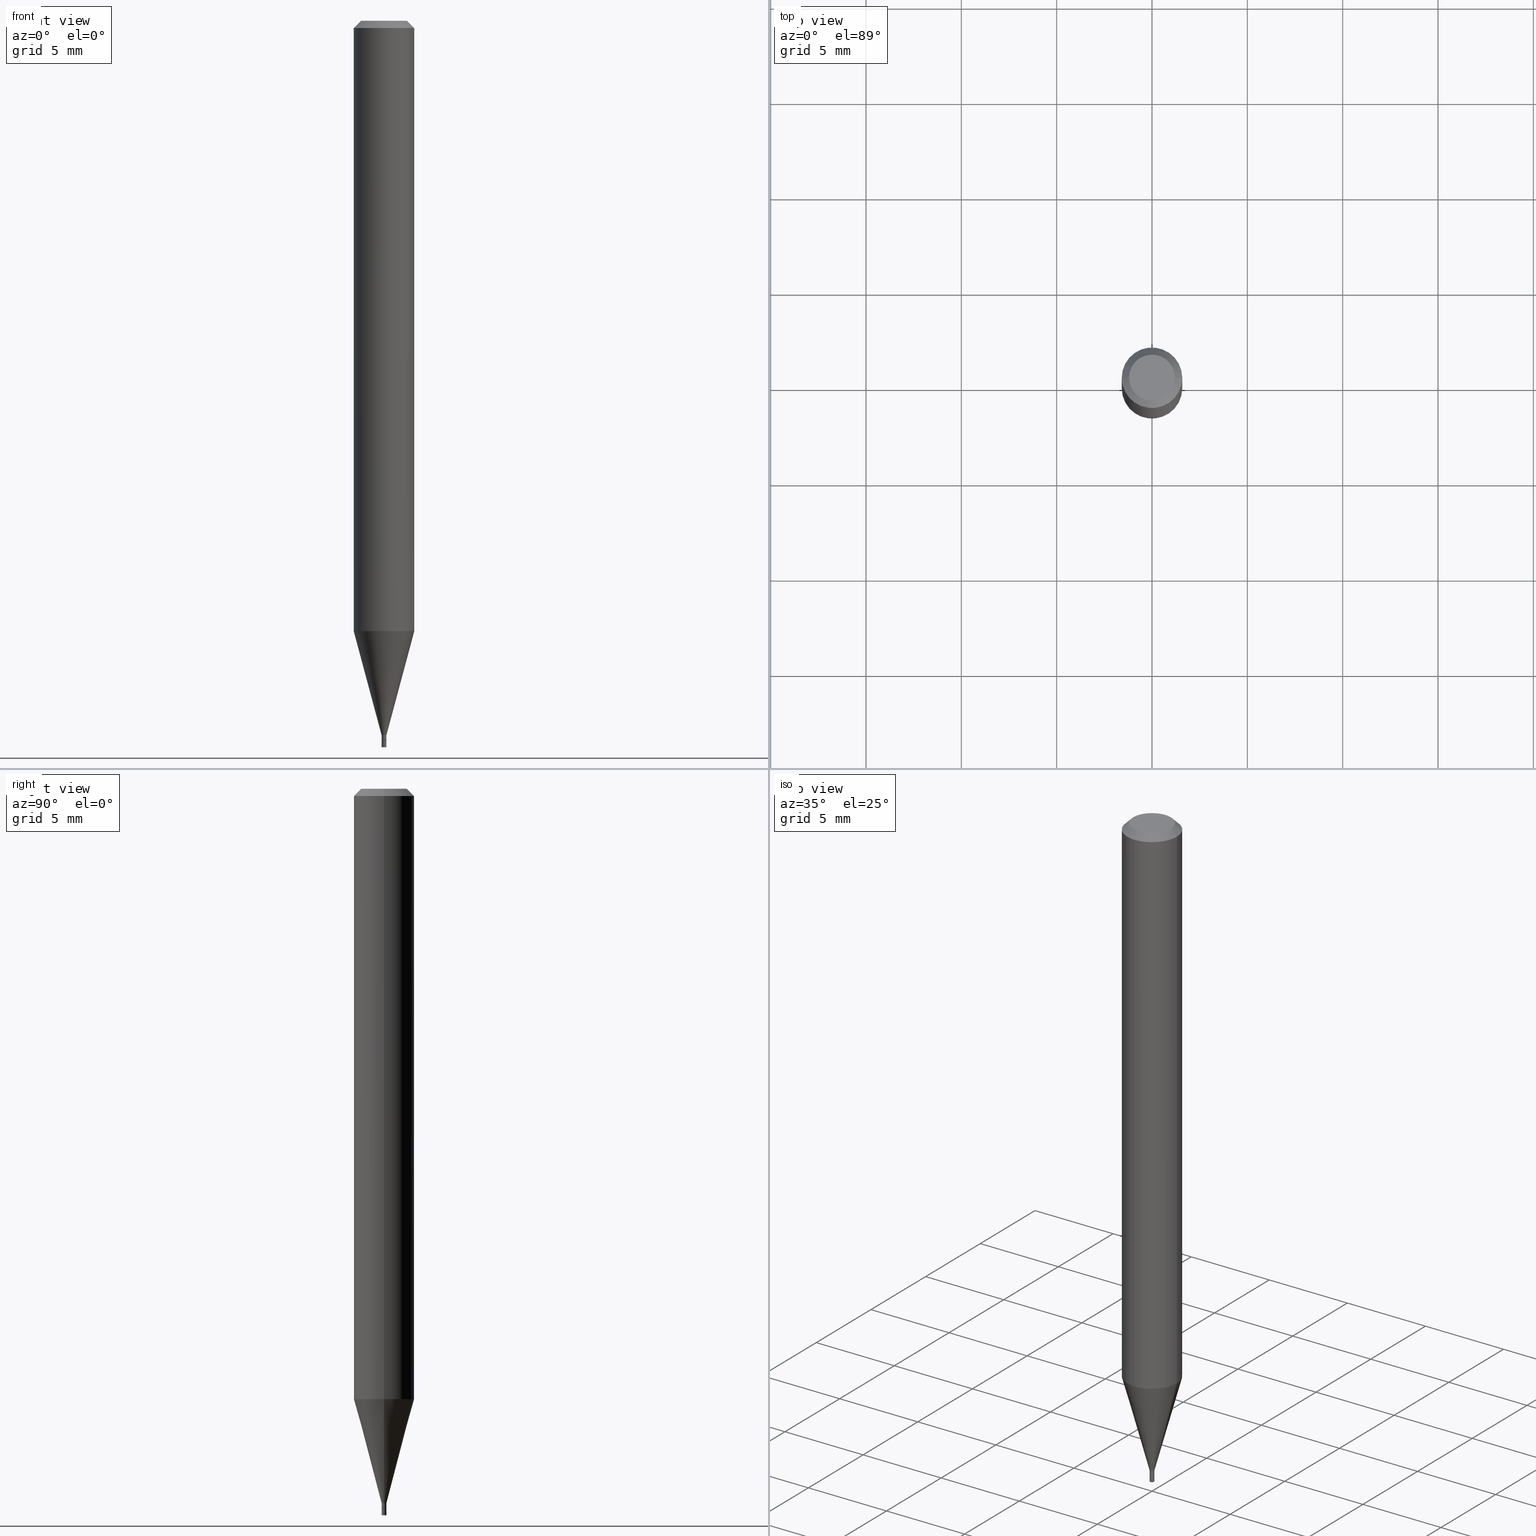
[diagram: canonical four-view strip — front | top / right | iso, engineering-drawing reading convention]
A machine part, canonical four-view strip (front | top / right | iso — engineering-drawing reading convention). The complete STEP part file that produces these views, byte-faithful:
ISO-10303-21;
HEADER;
FILE_DESCRIPTION (( 'STEP AP203' ),
    '1' );
FILE_NAME ('00377.STEP',
    '2024-03-19T21:05:39',
    ( '' ),
    ( '' ),
    'SwSTEP 2.0',
    'SolidWorks 2023',
    '' );
FILE_SCHEMA (( 'CONFIG_CONTROL_DESIGN' ));
ENDSEC;

DATA;
#1 = CC_DESIGN_APPROVAL ( #439, ( #209 ) ) ;
#2 = DIRECTION ( 'NONE',  ( -2.445468806185136597E-29, 3.491481338843145583E-15, 1.000000000000000000 ) ) ;
#3 = COORDINATED_UNIVERSAL_TIME_OFFSET ( 5, 0, .BEHIND. ) ;
#4 = FACE_OUTER_BOUND ( 'NONE', #82, .T. ) ;
#5 = EDGE_LOOP ( 'NONE', ( #176, #159, #215, #195 ) ) ;
#6 = DIRECTION ( 'NONE',  ( -2.445468806185136597E-29, 3.491481338843145583E-15, 1.000000000000000000 ) ) ;
#7 = EDGE_LOOP ( 'NONE', ( #395, #58, #222, #391 ) ) ;
#8 = PERSON_AND_ORGANIZATION ( #287, #132 ) ;
#9 = DIRECTION ( 'NONE',  ( 1.000000000000000000, -6.982962677686265922E-15, 4.876176775795935793E-29 ) ) ;
#10 = CIRCLE ( 'NONE', #452, 0.06250000000000000000 ) ;
#11 = PERSON_AND_ORGANIZATION ( #287, #132 ) ;
#12 = EDGE_CURVE ( 'NONE', #375, #122, #79, .T. ) ;
#13 = DATE_AND_TIME ( #285, #197 ) ;
#14 = ORIENTED_EDGE ( 'NONE', *, *, #302, .F. ) ;
#15 = ORIENTED_EDGE ( 'NONE', *, *, #457, .T. ) ;
#16 = EDGE_CURVE ( 'NONE', #384, #36, #205, .T. ) ;
#17 = ORIENTED_EDGE ( 'NONE', *, *, #434, .T. ) ;
#18 = PLANE ( 'NONE',  #69 ) ;
#19 = DIRECTION ( 'NONE',  ( -2.445468806185136597E-29, 3.491481338843145583E-15, 1.000000000000000000 ) ) ;
#20 = EDGE_LOOP ( 'NONE', ( #431, #35, #446, #430 ) ) ;
#21 = CLOSED_SHELL ( 'NONE', ( #241, #337, #411, #353, #425, #76, #147, #239, #417, #206, #224, #162 ) ) ;
#22 = LOCAL_TIME ( 17, 5, 39.00000000000000000, #190 ) ;
#23 = CARTESIAN_POINT ( 'NONE',  ( 0.005000000000000000104, -5.272136821653149826E-15, -1.500000000000000222 ) ) ;
#24 = CARTESIAN_POINT ( 'NONE',  ( -0.06250000000000000000, 3.840629472727444916E-16, -0.01499999999999999944 ) ) ;
#25 = CARTESIAN_POINT ( 'NONE',  ( -0.005000000000000000104, 3.552713678800501003E-17, -2.459467545127453136E-31 ) ) ;
#26 = CARTESIAN_POINT ( 'NONE',  ( 3.668203209277705088E-31, -5.237222008264718399E-17, -0.01499999999999999944 ) ) ;
#27 = CIRCLE ( 'NONE', #160, 0.004999999999999922909 ) ;
#28 = CARTESIAN_POINT ( 'NONE',  ( -0.004499999999999999660, -5.150226137898756937E-15, -1.485000000000000098 ) ) ;
#29 = AXIS2_PLACEMENT_3D ( 'NONE', #41, #181, #320 ) ;
#30 = CIRCLE ( 'NONE', #381, 0.06250000000000000000 ) ;
#31 = DIRECTION ( 'NONE',  ( 1.000000000000000000, -6.982962677686266711E-15, 4.876176775795935793E-29 ) ) ;
#32 = LINE ( 'NONE', #90, #95 ) ;
#33 = PRODUCT_DEFINITION_SHAPE ( 'NONE', 'NONE',  #81 ) ;
#34 = EDGE_CURVE ( 'NONE', #36, #384, #119, .T. ) ;
#35 = ORIENTED_EDGE ( 'NONE', *, *, #92, .T. ) ;
#36 = VERTEX_POINT ( 'NONE', #243 ) ;
#37 = DIRECTION ( 'NONE',  ( -2.445468806185136597E-29, 3.491481338843145583E-15, 1.000000000000000000 ) ) ;
#38 = APPROVAL_STATUS ( 'not_yet_approved' ) ;
#39 = ORIENTED_EDGE ( 'NONE', *, *, #382, .T. ) ;
#40 = CONICAL_SURFACE ( 'NONE', #293, 0.06250000000000000000, 0.7853981633974373988 ) ;
#41 = CARTESIAN_POINT ( 'NONE',  ( 0.000000000000000000, 0.000000000000000000, 0.000000000000000000 ) ) ;
#42 = LOCAL_TIME ( 17, 5, 39.00000000000000000, #327 ) ;
#43 = DIRECTION ( 'NONE',  ( 1.000000000000000000, -6.982962677686247778E-15, 0.000000000000000000 ) ) ;
#44 = ORIENTED_EDGE ( 'NONE', *, *, #152, .F. ) ;
#45 = APPROVAL_ROLE ( '' ) ;
#46 = ORIENTED_EDGE ( 'NONE', *, *, #52, .F. ) ;
#47 = DIRECTION ( 'NONE',  ( 1.000000000000000000, -6.982962677686265922E-15, 4.876176775795935793E-29 ) ) ;
#48 = VERTEX_POINT ( 'NONE', #392 ) ;
#49 = DIRECTION ( 'NONE',  ( -2.445468806185136597E-29, 3.491481338843145583E-15, 1.000000000000000000 ) ) ;
#50 = PERSON_AND_ORGANIZATION_ROLE ( 'creator' ) ;
#51 = FACE_OUTER_BOUND ( 'NONE', #274, .T. ) ;
#52 = EDGE_CURVE ( 'NONE', #333, #183, #110, .T. ) ;
#53 = AXIS2_PLACEMENT_3D ( 'NONE', #238, #385, #165 ) ;
#54 = DATE_AND_TIME ( #440, #42 ) ;
#55 = ADVANCED_FACE ( 'NONE', ( #216 ), #311, .F. ) ;
#56 = DIRECTION ( 'NONE',  ( -1.000000000000000000, 6.982962677686265922E-15, -4.876176775795935793E-29 ) ) ;
#57 = DIRECTION ( 'NONE',  ( -1.000000000000000000, 6.982962677686266711E-15, 0.000000000000000000 ) ) ;
#58 = ORIENTED_EDGE ( 'NONE', *, *, #52, .T. ) ;
#59 = DIRECTION ( 'NONE',  ( -2.445468806185136877E-29, 3.491481338843145188E-15, 1.000000000000000000 ) ) ;
#60 = FACE_OUTER_BOUND ( 'NONE', #271, .T. ) ;
#61 = AXIS2_PLACEMENT_3D ( 'NONE', #396, #459, #136 ) ;
#62 = CIRCLE ( 'NONE', #410, 0.04749999999999999362 ) ;
#63 = EDGE_CURVE ( 'NONE', #138, #218, #247, .T. ) ;
#64 = DIRECTION ( 'NONE',  ( 1.000000000000000000, -6.982962677686262766E-15, 0.000000000000000000 ) ) ;
#65 = EDGE_CURVE ( 'NONE', #414, #120, #456, .T. ) ;
#66 = FACE_OUTER_BOUND ( 'NONE', #193, .T. ) ;
#67 = CARTESIAN_POINT ( 'NONE',  ( 3.631521177184928138E-29, -5.184849788182071492E-15, -1.485000000000000098 ) ) ;
#68 = CARTESIAN_POINT ( 'NONE',  ( 0.000000000000000000, 0.000000000000000000, 0.000000000000000000 ) ) ;
#69 = AXIS2_PLACEMENT_3D ( 'NONE', #126, #187, #56 ) ;
#70 = CC_DESIGN_APPROVAL ( #306, ( #458 ) ) ;
#71 = DIRECTION ( 'NONE',  ( 1.000000000000000000, -6.982962677686262766E-15, 0.000000000000000000 ) ) ;
#72 = ADVANCED_FACE ( 'NONE', ( #466 ), #356, .T. ) ;
#73 =( CONVERSION_BASED_UNIT ( 'INCH', #460 ) LENGTH_UNIT ( ) NAMED_UNIT ( #371 ) );
#74 = CARTESIAN_POINT ( 'NONE',  ( -0.004999999999999922042, -5.114407838005636380E-15, -1.475000000000000311 ) ) ;
#75 = ORIENTED_EDGE ( 'NONE', *, *, #85, .T. ) ;
#76 = ADVANCED_FACE ( 'NONE', ( #4 ), #386, .T. ) ;
#77 = ORIENTED_EDGE ( 'NONE', *, *, #92, .F. ) ;
#78 = AXIS2_PLACEMENT_3D ( 'NONE', #101, #267, #31 ) ;
#79 = LINE ( 'NONE', #309, #139 ) ;
#80 = AXIS2_PLACEMENT_3D ( 'NONE', #163, #298, #263 ) ;
#81 = PRODUCT_DEFINITION ( 'UNKNOWN', '', #458, #260 ) ;
#82 = EDGE_LOOP ( 'NONE', ( #143, #75, #426, #362 ) ) ;
#83 = DIRECTION ( 'NONE',  ( 0.7071067811865647812, -2.468850131082438104E-15, 0.7071067811865301422 ) ) ;
#84 = APPLICATION_PROTOCOL_DEFINITION ( 'international standard', 'config_control_design', 1994, #437 ) ;
#85 = EDGE_CURVE ( 'NONE', #138, #122, #401, .T. ) ;
#86 = PERSON_AND_ORGANIZATION_ROLE ( 'design_supplier' ) ;
#87 = AXIS2_PLACEMENT_3D ( 'NONE', #288, #262, #9 ) ;
#88 = CARTESIAN_POINT ( 'NONE',  ( 3.668203209277705088E-31, -5.237222008264718399E-17, -0.01499999999999999944 ) ) ;
#89 = DIRECTION ( 'NONE',  ( 1.000000000000000000, -6.982962677686267499E-15, 4.876176775795935793E-29 ) ) ;
#90 = CARTESIAN_POINT ( 'NONE',  ( -0.004999999999999922909, 3.552713678800446153E-17, -2.459467545127415038E-31 ) ) ;
#91 = LINE ( 'NONE', #231, #445 ) ;
#92 = EDGE_CURVE ( 'NONE', #48, #375, #27, .T. ) ;
#93 = CARTESIAN_POINT ( 'NONE',  ( 3.082286193725132894E-29, -4.400687794154770769E-15, -1.260407078564790062 ) ) ;
#94 = DIRECTION ( 'NONE',  ( 1.000000000000000000, -6.982962677686266711E-15, 0.000000000000000000 ) ) ;
#95 = VECTOR ( 'NONE', #233, 39.37007874015748143 ) ;
#96 = EDGE_CURVE ( 'NONE', #412, #183, #189, .T. ) ;
#97 = FACE_OUTER_BOUND ( 'NONE', #229, .T. ) ;
#98 = EDGE_CURVE ( 'NONE', #333, #322, #204, .T. ) ;
#99 = CC_DESIGN_PERSON_AND_ORGANIZATION_ASSIGNMENT ( #11, #50, ( #458 ) ) ;
#100 = VECTOR ( 'NONE', #213, 39.37007874015748143 ) ;
#101 = CARTESIAN_POINT ( 'NONE',  ( 0.000000000000000000, 0.000000000000000000, 0.000000000000000000 ) ) ;
#102 = CARTESIAN_POINT ( 'NONE',  ( -0.04749999999999999362, 3.578768372314216422E-16, 3.292288316969860333E-16 ) ) ;
#103 = DIRECTION ( 'NONE',  ( 1.000000000000000000, -6.982962677686332186E-15, 0.000000000000000000 ) ) ;
#104 = AXIS2_PLACEMENT_3D ( 'NONE', #364, #49, #94 ) ;
#105 = AXIS2_PLACEMENT_3D ( 'NONE', #68, #344, #451 ) ;
#106 = DIRECTION ( 'NONE',  ( 1.000000000000000000, -6.982962677686265922E-15, 4.876176775795935793E-29 ) ) ;
#107 = SECURITY_CLASSIFICATION_LEVEL ( 'unclassified' ) ;
#108 = ORIENTED_EDGE ( 'NONE', *, *, #157, .F. ) ;
#109 = ORIENTED_EDGE ( 'NONE', *, *, #152, .T. ) ;
#110 = LINE ( 'NONE', #400, #100 ) ;
#111 = ORIENTED_EDGE ( 'NONE', *, *, #316, .F. ) ;
#112 = ORIENTED_EDGE ( 'NONE', *, *, #34, .F. ) ;
#113 = APPROVAL_PERSON_ORGANIZATION ( #321, #141, #45 ) ;
#114 = ADVANCED_BREP_SHAPE_REPRESENTATION ( '00377', ( #237, #389, #393 ), #402 ) ;
#115 = DIRECTION ( 'NONE',  ( 1.000000000000000000, -6.982962677686225690E-15, 0.000000000000000000 ) ) ;
#116 = DIRECTION ( 'NONE',  ( 2.445468806185136597E-29, -3.491481338843145583E-15, -1.000000000000000000 ) ) ;
#117 = APPROVAL_DATE_TIME ( #441, #439 ) ;
#118 = ORIENTED_EDGE ( 'NONE', *, *, #428, .F. ) ;
#119 = CIRCLE ( 'NONE', #326, 0.005000000000000000104 ) ;
#120 = VERTEX_POINT ( 'NONE', #256 ) ;
#121 = PLANE ( 'NONE',  #87 ) ;
#122 = VERTEX_POINT ( 'NONE', #374 ) ;
#123 = FACE_OUTER_BOUND ( 'NONE', #7, .T. ) ;
#124 = ORIENTED_EDGE ( 'NONE', *, *, #232, .F. ) ;
#125 = EDGE_CURVE ( 'NONE', #218, #412, #156, .T. ) ;
#126 = CARTESIAN_POINT ( 'NONE',  ( 3.491481338846764088E-17, 0.004999999999994815016, -1.485000000000000098 ) ) ;
#127 = DIRECTION ( 'NONE',  ( 1.000000000000000000, -6.982962677686225690E-15, 0.000000000000000000 ) ) ;
#128 = VECTOR ( 'NONE', #313, 39.37007874015747433 ) ;
#129 = CONICAL_SURFACE ( 'NONE', #315, 0.004499999999999999660, 0.7853981633974728149 ) ;
#130 = DIRECTION ( 'NONE',  ( -2.445468806185136877E-29, 3.491481338843145188E-15, 1.000000000000000000 ) ) ;
#131 = EDGE_LOOP ( 'NONE', ( #46, #349, #17, #397 ) ) ;
#132 = ORGANIZATION ( 'UNSPECIFIED', 'UNSPECIFIED', '' ) ;
#133 = CYLINDRICAL_SURFACE ( 'NONE', #78, 0.06250000000000000000 ) ;
#134 = CARTESIAN_POINT ( 'NONE',  ( 3.316907271900976096E-16, 0.04749999999999999362, -1.230947746555162994E-18 ) ) ;
#135 =( NAMED_UNIT ( * ) SI_UNIT ( $, .STERADIAN. ) SOLID_ANGLE_UNIT ( ) );
#136 = DIRECTION ( 'NONE',  ( 1.000000000000000000, -6.982962677686332186E-15, 0.000000000000000000 ) ) ;
#137 = CC_DESIGN_PERSON_AND_ORGANIZATION_ASSIGNMENT ( #290, #367, ( #209 ) ) ;
#138 = VERTEX_POINT ( 'NONE', #169 ) ;
#139 = VECTOR ( 'NONE', #277, 39.37007874015748143 ) ;
#140 = DIRECTION ( 'NONE',  ( 1.000000000000000000, -6.982962677686246200E-15, 0.000000000000000000 ) ) ;
#141 = APPROVAL ( #398, 'UNSPECIFIED' ) ;
#142 = CALENDAR_DATE ( 2024, 19, 3 ) ;
#143 = ORIENTED_EDGE ( 'NONE', *, *, #63, .F. ) ;
#144 = CARTESIAN_POINT ( 'NONE',  ( 3.607066489123076592E-29, -5.149934974793640632E-15, -1.475000000000000311 ) ) ;
#145 = ORIENTED_EDGE ( 'NONE', *, *, #201, .F. ) ;
#146 = CYLINDRICAL_SURFACE ( 'NONE', #347, 0.005000000000000000104 ) ;
#147 = ADVANCED_FACE ( 'NONE', ( #269 ), #133, .T. ) ;
#148 = EDGE_LOOP ( 'NONE', ( #109, #180 ) ) ;
#149 = APPROVAL_DATE_TIME ( #329, #141 ) ;
#150 = VECTOR ( 'NONE', #59, 39.37007874015748143 ) ;
#151 = CONICAL_SURFACE ( 'NONE', #80, 0.004999999999999922042, 0.2617993877991500740 ) ;
#152 = EDGE_CURVE ( 'NONE', #120, #414, #420, .T. ) ;
#153 = CARTESIAN_POINT ( 'NONE',  ( 0.005000000000000000104, -3.491481338843132862E-17, 2.438088387897967984E-31 ) ) ;
#154 = SHAPE_DEFINITION_REPRESENTATION ( #33, #114 ) ;
#155 = DIRECTION ( 'NONE',  ( 1.000000000000000000, -6.982962677686267499E-15, 4.876176775795935793E-29 ) ) ;
#156 = LINE ( 'NONE', #443, #266 ) ;
#157 = EDGE_CURVE ( 'NONE', #355, #48, #339, .T. ) ;
#158 = DIRECTION ( 'NONE',  ( -2.445468806185136597E-29, 3.491481338843145583E-15, 1.000000000000000000 ) ) ;
#159 = ORIENTED_EDGE ( 'NONE', *, *, #307, .T. ) ;
#160 = AXIS2_PLACEMENT_3D ( 'NONE', #280, #2, #140 ) ;
#161 = LINE ( 'NONE', #295, #281 ) ;
#162 = ADVANCED_FACE ( 'NONE', ( #279 ), #407, .T. ) ;
#163 = CARTESIAN_POINT ( 'NONE',  ( 3.607066489123076592E-29, -5.149934974793640632E-15, -1.475000000000000311 ) ) ;
#164 = CARTESIAN_POINT ( 'NONE',  ( 3.631521177184928138E-29, -5.184849788182071492E-15, -1.485000000000000098 ) ) ;
#165 = DIRECTION ( 'NONE',  ( 1.000000000000000000, -6.982962677686225690E-15, 0.000000000000000000 ) ) ;
#166 = DIRECTION ( 'NONE',  ( 1.000000000000000000, -6.982962677686267499E-15, 4.852736867747366768E-29 ) ) ;
#167 = CARTESIAN_POINT ( 'NONE',  ( 0.06250000000000000000, -4.364351673553916694E-16, 3.047610484872459871E-30 ) ) ;
#168 = DIRECTION ( 'NONE',  ( -1.000000000000000000, 6.982962677686266711E-15, 0.000000000000000000 ) ) ;
#169 = CARTESIAN_POINT ( 'NONE',  ( -0.004999999999999922042, -4.535503211155172266E-15, -1.475000000000000311 ) ) ;
#170 = AXIS2_PLACEMENT_3D ( 'NONE', #88, #6, #442 ) ;
#171 = VECTOR ( 'NONE', #130, 39.37007874015748143 ) ;
#172 = CARTESIAN_POINT ( 'NONE',  ( 3.631521177184928138E-29, -5.184849788182071492E-15, -1.485000000000000098 ) ) ;
#173 = ORIENTED_EDGE ( 'NONE', *, *, #299, .F. ) ;
#174 = DIRECTION ( 'NONE',  ( -2.445468806185136597E-29, 3.491481338843145583E-15, 1.000000000000000000 ) ) ;
#175 = ADVANCED_FACE ( 'NONE', ( #332 ), #18, .F. ) ;
#176 = ORIENTED_EDGE ( 'NONE', *, *, #125, .F. ) ;
#177 = DIRECTION ( 'NONE',  ( 1.000000000000000000, -6.982962677686332186E-15, 0.000000000000000000 ) ) ;
#178 = DIRECTION ( 'NONE',  ( 1.000000000000000000, -6.982962677686247778E-15, 0.000000000000000000 ) ) ;
#179 = CIRCLE ( 'NONE', #314, 0.004499999999999999660 ) ;
#180 = ORIENTED_EDGE ( 'NONE', *, *, #65, .T. ) ;
#181 = DIRECTION ( 'NONE',  ( -2.445468806185136597E-29, 3.491481338843145583E-15, 1.000000000000000000 ) ) ;
#182 = PRODUCT ( '00377', '00377', '', ( #390 ) ) ;
#183 = VERTEX_POINT ( 'NONE', #373 ) ;
#184 = PERSON_AND_ORGANIZATION_ROLE ( 'design_owner' ) ;
#185 = EDGE_CURVE ( 'NONE', #399, #375, #161, .T. ) ;
#186 = DIRECTION ( 'NONE',  ( -2.445468806185136597E-29, 3.491481338843145583E-15, 1.000000000000000000 ) ) ;
#187 = DIRECTION ( 'NONE',  ( 2.438088387897960049E-29, -3.491481338843145188E-15, -1.000000000000000000 ) ) ;
#188 = COORDINATED_UNIVERSAL_TIME_OFFSET ( 5, 0, .BEHIND. ) ;
#189 = CIRCLE ( 'NONE', #104, 0.06250000000000000000 ) ;
#190 = COORDINATED_UNIVERSAL_TIME_OFFSET ( 5, 0, .BEHIND. ) ;
#191 = CARTESIAN_POINT ( 'NONE',  ( 0.000000000000000000, 0.000000000000000000, 0.000000000000000000 ) ) ;
#192 = ORIENTED_EDGE ( 'NONE', *, *, #63, .T. ) ;
#193 = EDGE_LOOP ( 'NONE', ( #292, #192, #118, #284 ) ) ;
#194 = FACE_OUTER_BOUND ( 'NONE', #464, .T. ) ;
#195 = ORIENTED_EDGE ( 'NONE', *, *, #96, .F. ) ;
#196 = AXIS2_PLACEMENT_3D ( 'NONE', #211, #37, #177 ) ;
#197 = LOCAL_TIME ( 17, 5, 39.00000000000000000, #432 ) ;
#198 = LINE ( 'NONE', #24, #358 ) ;
#199 = DIRECTION ( 'NONE',  ( -0.7071067811865398012, 2.468850131082175808E-15, -0.7071067811865552333 ) ) ;
#200 = ORIENTED_EDGE ( 'NONE', *, *, #16, .T. ) ;
#201 = EDGE_CURVE ( 'NONE', #355, #399, #179, .T. ) ;
#202 = CARTESIAN_POINT ( 'NONE',  ( 3.630298442781835897E-29, -5.183104047512649988E-15, -1.484500000000000153 ) ) ;
#203 = DIRECTION ( 'NONE',  ( 1.000000000000000000, -6.982962677686332186E-15, 0.000000000000000000 ) ) ;
#204 = CIRCLE ( 'NONE', #408, 0.04749999999999999362 ) ;
#205 = CIRCLE ( 'NONE', #61, 0.005000000000000000104 ) ;
#206 = ADVANCED_FACE ( 'NONE', ( #60 ), #121, .F. ) ;
#207 = CIRCLE ( 'NONE', #53, 0.004499999999999999660 ) ;
#208 = CARTESIAN_POINT ( 'NONE',  ( 0.06249999999999999306, -4.837122961510163228E-15, -1.260407078564790062 ) ) ;
#209 = SECURITY_CLASSIFICATION ( '', '', #107 ) ;
#210 = ORIENTED_EDGE ( 'NONE', *, *, #12, .F. ) ;
#211 = CARTESIAN_POINT ( 'NONE',  ( 3.631521177184928138E-29, -5.184849788182071492E-15, -1.485000000000000098 ) ) ;
#212 = PERSON_AND_ORGANIZATION ( #287, #132 ) ;
#213 = DIRECTION ( 'NONE',  ( 0.7071067811865398012, -7.319954787623229224E-15, -0.7071067811865552333 ) ) ;
#214 = CLOSED_SHELL ( 'NONE', ( #72, #55, #258, #175 ) ) ;
#215 = ORIENTED_EDGE ( 'NONE', *, *, #289, .T. ) ;
#216 = FACE_OUTER_BOUND ( 'NONE', #330, .T. ) ;
#217 = APPROVAL_STATUS ( 'not_yet_approved' ) ;
#218 = VERTEX_POINT ( 'NONE', #415 ) ;
#219 = EDGE_CURVE ( 'NONE', #122, #359, #91, .T. ) ;
#220 = APPROVAL_ROLE ( '' ) ;
#221 = APPROVAL_DATE_TIME ( #366, #306 ) ;
#222 = ORIENTED_EDGE ( 'NONE', *, *, #254, .T. ) ;
#223 = AXIS2_PLACEMENT_3D ( 'NONE', #413, #303, #301 ) ;
#224 = ADVANCED_FACE ( 'NONE', ( #450 ), #240, .T. ) ;
#225 = APPROVAL_PERSON_ORGANIZATION ( #212, #306, #220 ) ;
#226 = CARTESIAN_POINT ( 'NONE',  ( 0.000000000000000000, 0.000000000000000000, 0.000000000000000000 ) ) ;
#227 = ORIENTED_EDGE ( 'NONE', *, *, #98, .T. ) ;
#228 = CC_DESIGN_DATE_AND_TIME_ASSIGNMENT ( #54, #354, ( #209 ) ) ;
#229 = EDGE_LOOP ( 'NONE', ( #318, #294, #286, #296 ) ) ;
#230 = CARTESIAN_POINT ( 'NONE',  ( 0.004999999999999922909, -5.218018860901080849E-15, -1.484500000000000153 ) ) ;
#231 = CARTESIAN_POINT ( 'NONE',  ( 0.004999999999999922042, -5.184849788182071492E-15, -1.475000000000000311 ) ) ;
#232 = EDGE_CURVE ( 'NONE', #384, #120, #325, .T. ) ;
#233 = DIRECTION ( 'NONE',  ( -2.445468806185136877E-29, 3.491481338843145188E-15, 1.000000000000000000 ) ) ;
#234 = CARTESIAN_POINT ( 'NONE',  ( -8.051188380117617343E-45, 1.149496322079166104E-30, 3.292288316969884985E-16 ) ) ;
#235 = CARTESIAN_POINT ( 'NONE',  ( 0.004499999999999999660, -5.216273120231659345E-15, -1.485000000000000098 ) ) ;
#236 = EDGE_LOOP ( 'NONE', ( #108, #283, #404, #77 ) ) ;
#237 = MANIFOLD_SOLID_BREP ( 'Body-Move/Copy2[1]', #214 ) ;
#238 = CARTESIAN_POINT ( 'NONE',  ( 3.631521177184928138E-29, -5.184849788182071492E-15, -1.485000000000000098 ) ) ;
#239 = ADVANCED_FACE ( 'NONE', ( #264 ), #40, .T. ) ;
#240 = CONICAL_SURFACE ( 'NONE', #435, 0.004499999999999999660, 0.7853981633974728149 ) ;
#241 = ADVANCED_FACE ( 'NONE', ( #51 ), #255, .T. ) ;
#242 = DIRECTION ( 'NONE',  ( -2.445468806185136597E-29, 3.491481338843145583E-15, 1.000000000000000000 ) ) ;
#243 = CARTESIAN_POINT ( 'NONE',  ( -0.005000000000000000104, -5.175508761435389793E-15, -1.500000000000000222 ) ) ;
#244 = CIRCLE ( 'NONE', #170, 0.06250000000000000000 ) ;
#245 = LOCAL_TIME ( 17, 5, 39.00000000000000000, #188 ) ;
#246 = CARTESIAN_POINT ( 'NONE',  ( 0.000000000000000000, 0.000000000000000000, 0.000000000000000000 ) ) ;
#247 = LINE ( 'NONE', #74, #128 ) ;
#248 = PERSON_AND_ORGANIZATION ( #287, #132 ) ;
#249 = ORIENTED_EDGE ( 'NONE', *, *, #157, .T. ) ;
#250 = ORIENTED_EDGE ( 'NONE', *, *, #16, .F. ) ;
#251 = DATE_TIME_ROLE ( 'creation_date' ) ;
#252 = ORIENTED_EDGE ( 'NONE', *, *, #302, .T. ) ;
#253 = CC_DESIGN_PERSON_AND_ORGANIZATION_ASSIGNMENT ( #406, #324, ( #81 ) ) ;
#254 = EDGE_CURVE ( 'NONE', #183, #412, #244, .T. ) ;
#255 = CYLINDRICAL_SURFACE ( 'NONE', #379, 0.004999999999999922909 ) ;
#256 = CARTESIAN_POINT ( 'NONE',  ( 0.005000000000000000104, -5.219764601570503141E-15, -1.485000000000000098 ) ) ;
#257 = VECTOR ( 'NONE', #350, 39.37007874015748854 ) ;
#258 = ADVANCED_FACE ( 'NONE', ( #372 ), #146, .T. ) ;
#259 = AXIS2_PLACEMENT_3D ( 'NONE', #383, #419, #168 ) ;
#260 = DESIGN_CONTEXT ( 'detailed design', #437, 'design' ) ;
#261 = DIRECTION ( 'NONE',  ( 1.000000000000000000, -6.982962677686246200E-15, 0.000000000000000000 ) ) ;
#262 = DIRECTION ( 'NONE',  ( -2.438088387897960049E-29, 3.491481338843145188E-15, 1.000000000000000000 ) ) ;
#263 = DIRECTION ( 'NONE',  ( 1.000000000000000000, -6.982962677686247778E-15, 0.000000000000000000 ) ) ;
#264 = FACE_OUTER_BOUND ( 'NONE', #131, .T. ) ;
#265 = DIRECTION ( 'NONE',  ( 1.000000000000000000, -6.982962677686267499E-15, 4.852736867747366768E-29 ) ) ;
#266 = VECTOR ( 'NONE', #272, 39.37007874015748143 ) ;
#267 = DIRECTION ( 'NONE',  ( -2.445468806185136597E-29, 3.491481338843145583E-15, 1.000000000000000000 ) ) ;
#268 = DIRECTION ( 'NONE',  ( -2.445468806185136597E-29, 3.491481338843145583E-15, 1.000000000000000000 ) ) ;
#269 = FACE_OUTER_BOUND ( 'NONE', #5, .T. ) ;
#270 = EDGE_CURVE ( 'NONE', #48, #138, #32, .T. ) ;
#271 = EDGE_LOOP ( 'NONE', ( #14, #145 ) ) ;
#272 = DIRECTION ( 'NONE',  ( -2.445468806185136877E-29, 3.491481338843145188E-15, 1.000000000000000000 ) ) ;
#273 = AXIS2_PLACEMENT_3D ( 'NONE', #360, #461, #106 ) ;
#274 = EDGE_LOOP ( 'NONE', ( #323, #278, #111, #210 ) ) ;
#275 = APPROVAL_PERSON_ORGANIZATION ( #248, #439, #317 ) ;
#276 = FACE_OUTER_BOUND ( 'NONE', #433, .T. ) ;
#277 = DIRECTION ( 'NONE',  ( -2.445468806185136877E-29, 3.491481338843145188E-15, 1.000000000000000000 ) ) ;
#278 = ORIENTED_EDGE ( 'NONE', *, *, #270, .T. ) ;
#279 = FACE_OUTER_BOUND ( 'NONE', #20, .T. ) ;
#280 = CARTESIAN_POINT ( 'NONE',  ( 3.630298442781835897E-29, -5.183104047512649988E-15, -1.484500000000000153 ) ) ;
#281 = VECTOR ( 'NONE', #83, 39.37007874015748854 ) ;
#282 = CALENDAR_DATE ( 2024, 19, 3 ) ;
#283 = ORIENTED_EDGE ( 'NONE', *, *, #201, .T. ) ;
#284 = ORIENTED_EDGE ( 'NONE', *, *, #219, .F. ) ;
#285 = CALENDAR_DATE ( 2024, 19, 3 ) ;
#286 = ORIENTED_EDGE ( 'NONE', *, *, #254, .F. ) ;
#287 = PERSON ( 'UNSPECIFIED', 'UNSPECIFIED', 'UNSPECIFIED', ('UNSPECIFIED'), ('UNSPECIFIED'), ('UNSPECIFIED') ) ;
#288 = CARTESIAN_POINT ( 'NONE',  ( 3.631521177184928138E-29, -5.184849788182071492E-15, -1.485000000000000098 ) ) ;
#289 = EDGE_CURVE ( 'NONE', #359, #183, #310, .T. ) ;
#290 = PERSON_AND_ORGANIZATION ( #287, #132 ) ;
#291 = CC_DESIGN_DATE_AND_TIME_ASSIGNMENT ( #13, #251, ( #81 ) ) ;
#292 = ORIENTED_EDGE ( 'NONE', *, *, #316, .T. ) ;
#293 = AXIS2_PLACEMENT_3D ( 'NONE', #26, #116, #57 ) ;
#294 = ORIENTED_EDGE ( 'NONE', *, *, #125, .T. ) ;
#295 = CARTESIAN_POINT ( 'NONE',  ( 0.004499999999999999660, -5.216273120231659345E-15, -1.485000000000000098 ) ) ;
#296 = ORIENTED_EDGE ( 'NONE', *, *, #289, .F. ) ;
#297 = APPLICATION_CONTEXT ( 'configuration controlled 3d designs of mechanical parts and assemblies' ) ;
#298 = DIRECTION ( 'NONE',  ( -2.445468806185136597E-29, 3.491481338843145583E-15, 1.000000000000000000 ) ) ;
#299 = EDGE_CURVE ( 'NONE', #375, #48, #418, .T. ) ;
#300 = DIRECTION ( 'NONE',  ( 0.2588190451025213501, 1.565188264969621968E-15, 0.9659258262890682012 ) ) ;
#301 = DIRECTION ( 'NONE',  ( 1.000000000000000000, -6.982962677686247778E-15, 0.000000000000000000 ) ) ;
#302 = EDGE_CURVE ( 'NONE', #399, #355, #207, .T. ) ;
#303 = DIRECTION ( 'NONE',  ( -2.445468806185136597E-29, 3.491481338843145583E-15, 1.000000000000000000 ) ) ;
#304 = CIRCLE ( 'NONE', #223, 0.004999999999999922042 ) ;
#305 = CARTESIAN_POINT ( 'NONE',  ( -0.005000000000000000104, -5.175508761435389793E-15, -1.485000000000000098 ) ) ;
#306 = APPROVAL ( #217, 'UNSPECIFIED' ) ;
#307 = EDGE_CURVE ( 'NONE', #218, #359, #10, .T. ) ;
#308 =( NAMED_UNIT ( * ) PLANE_ANGLE_UNIT ( ) SI_UNIT ( $, .RADIAN. ) );
#309 = CARTESIAN_POINT ( 'NONE',  ( 0.004999999999999922909, -3.491481338843079861E-17, 2.438088387897930324E-31 ) ) ;
#310 = LINE ( 'NONE', #167, #150 ) ;
#311 = PLANE ( 'NONE',  #273 ) ;
#312 = ORIENTED_EDGE ( 'NONE', *, *, #65, .F. ) ;
#313 = DIRECTION ( 'NONE',  ( -0.2588190451025213501, 5.211531920934551042E-15, 0.9659258262890682012 ) ) ;
#314 = AXIS2_PLACEMENT_3D ( 'NONE', #164, #447, #115 ) ;
#315 = AXIS2_PLACEMENT_3D ( 'NONE', #172, #242, #127 ) ;
#316 = EDGE_CURVE ( 'NONE', #122, #138, #304, .T. ) ;
#317 = APPROVAL_ROLE ( '' ) ;
#318 = ORIENTED_EDGE ( 'NONE', *, *, #428, .T. ) ;
#319 = UNCERTAINTY_MEASURE_WITH_UNIT (LENGTH_MEASURE( 1.000000000000000082E-05 ), #73, 'distance_accuracy_value', 'NONE');
#320 = DIRECTION ( 'NONE',  ( 1.000000000000000000, -6.982962677686265922E-15, 4.876176775795935793E-29 ) ) ;
#321 = PERSON_AND_ORGANIZATION ( #287, #132 ) ;
#322 = VERTEX_POINT ( 'NONE', #102 ) ;
#323 = ORIENTED_EDGE ( 'NONE', *, *, #299, .T. ) ;
#324 = PERSON_AND_ORGANIZATION_ROLE ( 'creator' ) ;
#325 = LINE ( 'NONE', #153, #345 ) ;
#326 = AXIS2_PLACEMENT_3D ( 'NONE', #424, #174, #103 ) ;
#327 = COORDINATED_UNIVERSAL_TIME_OFFSET ( 5, 0, .BEHIND. ) ;
#328 = CC_DESIGN_APPROVAL ( #141, ( #81 ) ) ;
#329 = DATE_AND_TIME ( #282, #22 ) ;
#330 = EDGE_LOOP ( 'NONE', ( #250, #112 ) ) ;
#331 = CARTESIAN_POINT ( 'NONE',  ( 0.000000000000000000, 0.000000000000000000, 0.000000000000000000 ) ) ;
#332 = FACE_OUTER_BOUND ( 'NONE', #148, .T. ) ;
#333 = VERTEX_POINT ( 'NONE', #416 ) ;
#334 = AXIS2_PLACEMENT_3D ( 'NONE', #226, #370, #89 ) ;
#335 = DIRECTION ( 'NONE',  ( -1.000000000000000000, 6.982962677686265922E-15, -4.876176775795935793E-29 ) ) ;
#336 = LOCAL_TIME ( 17, 5, 39.00000000000000000, #3 ) ;
#337 = ADVANCED_FACE ( 'NONE', ( #276 ), #129, .T. ) ;
#338 = CARTESIAN_POINT ( 'NONE',  ( 3.082286193725132894E-29, -4.400687794154770769E-15, -1.260407078564790062 ) ) ;
#339 = LINE ( 'NONE', #343, #257 ) ;
#340 = LINE ( 'NONE', #25, #171 ) ;
#341 = EDGE_LOOP ( 'NONE', ( #403, #444, #449, #312 ) ) ;
#342 = DIRECTION ( 'NONE',  ( -2.445468806185136597E-29, 3.491481338843145583E-15, 1.000000000000000000 ) ) ;
#343 = CARTESIAN_POINT ( 'NONE',  ( -0.004499999999999999660, -5.152875365072866561E-15, -1.485000000000000098 ) ) ;
#344 = DIRECTION ( 'NONE',  ( -2.445468806185136597E-29, 3.491481338843145583E-15, 1.000000000000000000 ) ) ;
#345 = VECTOR ( 'NONE', #438, 39.37007874015748143 ) ;
#346 = EDGE_LOOP ( 'NONE', ( #200, #15, #44, #124 ) ) ;
#347 = AXIS2_PLACEMENT_3D ( 'NONE', #331, #158, #47 ) ;
#348 = CARTESIAN_POINT ( 'NONE',  ( -0.06250000000000000000, -1.782440797268646111E-15, -0.01499999999999999944 ) ) ;
#349 = ORIENTED_EDGE ( 'NONE', *, *, #382, .F. ) ;
#350 = DIRECTION ( 'NONE',  ( -0.7071067811865647812, 7.493145998870415691E-15, 0.7071067811865301422 ) ) ;
#351 = DIRECTION ( 'NONE',  ( 1.000000000000000000, 0.000000000000000000, 0.000000000000000000 ) ) ;
#352 = ORIENTED_EDGE ( 'NONE', *, *, #185, .F. ) ;
#353 = ADVANCED_FACE ( 'NONE', ( #97 ), #448, .T. ) ;
#354 = DATE_TIME_ROLE ( 'classification_date' ) ;
#355 = VERTEX_POINT ( 'NONE', #28 ) ;
#356 = CYLINDRICAL_SURFACE ( 'NONE', #29, 0.005000000000000000104 ) ;
#357 = AXIS2_PLACEMENT_3D ( 'NONE', #365, #436, #178 ) ;
#358 = VECTOR ( 'NONE', #199, 39.37007874015748143 ) ;
#359 = VERTEX_POINT ( 'NONE', #208 ) ;
#360 = CARTESIAN_POINT ( 'NONE',  ( 3.576687321579069994E-29, -5.368277968210015545E-15, -1.500000000000000222 ) ) ;
#361 = CALENDAR_DATE ( 2024, 19, 3 ) ;
#362 = ORIENTED_EDGE ( 'NONE', *, *, #307, .F. ) ;
#363 = DIRECTION ( 'NONE',  ( 1.000000000000000000, -6.982962677686225690E-15, 0.000000000000000000 ) ) ;
#364 = CARTESIAN_POINT ( 'NONE',  ( 3.668203209277705088E-31, -5.237222008264718399E-17, -0.01499999999999999944 ) ) ;
#365 = CARTESIAN_POINT ( 'NONE',  ( 3.607066489123076592E-29, -5.149934974793640632E-15, -1.475000000000000311 ) ) ;
#366 = DATE_AND_TIME ( #361, #245 ) ;
#367 = PERSON_AND_ORGANIZATION_ROLE ( 'classification_officer' ) ;
#368 = CONICAL_SURFACE ( 'NONE', #259, 0.06250000000000000000, 0.7853981633974373988 ) ;
#369 = DIRECTION ( 'NONE',  ( -2.445468806185136597E-29, 3.491481338843145583E-15, 1.000000000000000000 ) ) ;
#370 = DIRECTION ( 'NONE',  ( -2.445468806185136597E-29, 3.491481338843145583E-15, 1.000000000000000000 ) ) ;
#371 = DIMENSIONAL_EXPONENTS ( 1.000000000000000000, 0.000000000000000000, 0.000000000000000000, 0.000000000000000000, 0.000000000000000000, 0.000000000000000000, 0.000000000000000000 ) ;
#372 = FACE_OUTER_BOUND ( 'NONE', #341, .T. ) ;
#373 = CARTESIAN_POINT ( 'NONE',  ( 0.06250000000000000000, -4.888073874380388472E-16, -0.01499999999999999944 ) ) ;
#374 = CARTESIAN_POINT ( 'NONE',  ( 0.004999999999999922042, -5.184849788182071492E-15, -1.475000000000000311 ) ) ;
#375 = VERTEX_POINT ( 'NONE', #230 ) ;
#376 = CARTESIAN_POINT ( 'NONE',  ( -8.051188380117617343E-45, 1.149496322079166104E-30, 3.292288316969884985E-16 ) ) ;
#377 = CARTESIAN_POINT ( 'NONE',  ( 3.631521177184928138E-29, -5.184849788182071492E-15, -1.485000000000000098 ) ) ;
#378 = CC_DESIGN_PERSON_AND_ORGANIZATION_ASSIGNMENT ( #429, #86, ( #458 ) ) ;
#379 = AXIS2_PLACEMENT_3D ( 'NONE', #191, #369, #155 ) ;
#380 = DIRECTION ( 'NONE',  ( -2.445468806185136597E-29, 3.491481338843145583E-15, 1.000000000000000000 ) ) ;
#381 = AXIS2_PLACEMENT_3D ( 'NONE', #93, #380, #64 ) ;
#382 = EDGE_CURVE ( 'NONE', #322, #333, #62, .T. ) ;
#383 = CARTESIAN_POINT ( 'NONE',  ( 3.668203209277705088E-31, -5.237222008264718399E-17, -0.01499999999999999944 ) ) ;
#384 = VERTEX_POINT ( 'NONE', #23 ) ;
#385 = DIRECTION ( 'NONE',  ( -2.445468806185136597E-29, 3.491481338843145583E-15, 1.000000000000000000 ) ) ;
#386 = CONICAL_SURFACE ( 'NONE', #409, 0.004999999999999922042, 0.2617993877991500740 ) ;
#387 = CC_DESIGN_SECURITY_CLASSIFICATION ( #209, ( #458 ) ) ;
#388 = DIRECTION ( 'NONE',  ( -2.445468806185136597E-29, 3.491481338843145583E-15, 1.000000000000000000 ) ) ;
#389 = MANIFOLD_SOLID_BREP ( 'Body-Move/Copy2[2]', #21 ) ;
#390 = MECHANICAL_CONTEXT ( 'NONE', #297, 'mechanical' ) ;
#391 = ORIENTED_EDGE ( 'NONE', *, *, #434, .F. ) ;
#392 = CARTESIAN_POINT ( 'NONE',  ( -0.004999999999999922909, -5.147576910724645736E-15, -1.484500000000000153 ) ) ;
#393 = AXIS2_PLACEMENT_3D ( 'NONE', #246, #394, #351 ) ;
#394 = DIRECTION ( 'NONE',  ( 0.000000000000000000, 0.000000000000000000, 1.000000000000000000 ) ) ;
#395 = ORIENTED_EDGE ( 'NONE', *, *, #98, .F. ) ;
#396 = CARTESIAN_POINT ( 'NONE',  ( 3.668203209277704895E-29, -5.237222008264718177E-15, -1.500000000000000222 ) ) ;
#397 = ORIENTED_EDGE ( 'NONE', *, *, #96, .T. ) ;
#398 = APPROVAL_STATUS ( 'not_yet_approved' ) ;
#399 = VERTEX_POINT ( 'NONE', #235 ) ;
#400 = CARTESIAN_POINT ( 'NONE',  ( 0.06250000000000000000, -4.811533449433679005E-16, -0.01499999999999999944 ) ) ;
#401 = CIRCLE ( 'NONE', #357, 0.004999999999999922042 ) ;
#402 =( GEOMETRIC_REPRESENTATION_CONTEXT ( 3 ) GLOBAL_UNCERTAINTY_ASSIGNED_CONTEXT ( ( #319 ) ) GLOBAL_UNIT_ASSIGNED_CONTEXT ( ( #73, #308, #135 ) ) REPRESENTATION_CONTEXT ( 'NONE', 'WORKASPACE' ) );
#403 = ORIENTED_EDGE ( 'NONE', *, *, #457, .F. ) ;
#404 = ORIENTED_EDGE ( 'NONE', *, *, #185, .T. ) ;
#405 = DIRECTION ( 'NONE',  ( -2.445468806185136597E-29, 3.491481338843145583E-15, 1.000000000000000000 ) ) ;
#406 = PERSON_AND_ORGANIZATION ( #287, #132 ) ;
#407 = CYLINDRICAL_SURFACE ( 'NONE', #334, 0.004999999999999922909 ) ;
#408 = AXIS2_PLACEMENT_3D ( 'NONE', #234, #19, #166 ) ;
#409 = AXIS2_PLACEMENT_3D ( 'NONE', #144, #186, #43 ) ;
#410 = AXIS2_PLACEMENT_3D ( 'NONE', #376, #453, #265 ) ;
#411 = ADVANCED_FACE ( 'NONE', ( #123 ), #368, .T. ) ;
#412 = VERTEX_POINT ( 'NONE', #348 ) ;
#413 = CARTESIAN_POINT ( 'NONE',  ( 3.607066489123076592E-29, -5.149934974793640632E-15, -1.475000000000000311 ) ) ;
#414 = VERTEX_POINT ( 'NONE', #305 ) ;
#415 = CARTESIAN_POINT ( 'NONE',  ( -0.06249999999999999306, -3.956598584304708153E-15, -1.260407078564790062 ) ) ;
#416 = CARTESIAN_POINT ( 'NONE',  ( 0.04749999999999999362, -4.035134999187572707E-16, 3.292288316969910130E-16 ) ) ;
#417 = ADVANCED_FACE ( 'NONE', ( #194 ), #455, .F. ) ;
#418 = CIRCLE ( 'NONE', #427, 0.004999999999999922909 ) ;
#419 = DIRECTION ( 'NONE',  ( 2.445468806185136597E-29, -3.491481338843145583E-15, -1.000000000000000000 ) ) ;
#420 = CIRCLE ( 'NONE', #465, 0.005000000000000000104 ) ;
#421 =( LENGTH_UNIT ( ) NAMED_UNIT ( * ) SI_UNIT ( $, .METRE. ) );
#422 = PRODUCT_RELATED_PRODUCT_CATEGORY ( 'detail', '', ( #182 ) ) ;
#423 = DIRECTION ( 'NONE',  ( 2.438088387897960049E-29, -3.491481338843145188E-15, -1.000000000000000000 ) ) ;
#424 = CARTESIAN_POINT ( 'NONE',  ( 3.668203209277704895E-29, -5.237222008264718177E-15, -1.500000000000000222 ) ) ;
#425 = ADVANCED_FACE ( 'NONE', ( #66 ), #151, .T. ) ;
#426 = ORIENTED_EDGE ( 'NONE', *, *, #219, .T. ) ;
#427 = AXIS2_PLACEMENT_3D ( 'NONE', #202, #388, #261 ) ;
#428 = EDGE_CURVE ( 'NONE', #359, #218, #30, .T. ) ;
#429 = PERSON_AND_ORGANIZATION ( #287, #132 ) ;
#430 = ORIENTED_EDGE ( 'NONE', *, *, #85, .F. ) ;
#431 = ORIENTED_EDGE ( 'NONE', *, *, #270, .F. ) ;
#432 = COORDINATED_UNIVERSAL_TIME_OFFSET ( 5, 0, .BEHIND. ) ;
#433 = EDGE_LOOP ( 'NONE', ( #252, #249, #173, #352 ) ) ;
#434 = EDGE_CURVE ( 'NONE', #322, #412, #198, .T. ) ;
#435 = AXIS2_PLACEMENT_3D ( 'NONE', #377, #405, #363 ) ;
#436 = DIRECTION ( 'NONE',  ( -2.445468806185136597E-29, 3.491481338843145583E-15, 1.000000000000000000 ) ) ;
#437 = APPLICATION_CONTEXT ( 'configuration controlled 3d designs of mechanical parts and assemblies' ) ;
#438 = DIRECTION ( 'NONE',  ( -2.445468806185136877E-29, 3.491481338843145188E-15, 1.000000000000000000 ) ) ;
#439 = APPROVAL ( #38, 'UNSPECIFIED' ) ;
#440 = CALENDAR_DATE ( 2024, 19, 3 ) ;
#441 = DATE_AND_TIME ( #142, #336 ) ;
#442 = DIRECTION ( 'NONE',  ( 1.000000000000000000, -6.982962677686266711E-15, 0.000000000000000000 ) ) ;
#443 = CARTESIAN_POINT ( 'NONE',  ( -0.06250000000000000000, 4.440892098500626162E-16, -3.074334431409316114E-30 ) ) ;
#444 = ORIENTED_EDGE ( 'NONE', *, *, #34, .T. ) ;
#445 = VECTOR ( 'NONE', #300, 39.37007874015747433 ) ;
#446 = ORIENTED_EDGE ( 'NONE', *, *, #12, .T. ) ;
#447 = DIRECTION ( 'NONE',  ( -2.445468806185136597E-29, 3.491481338843145583E-15, 1.000000000000000000 ) ) ;
#448 = CYLINDRICAL_SURFACE ( 'NONE', #105, 0.06250000000000000000 ) ;
#449 = ORIENTED_EDGE ( 'NONE', *, *, #232, .T. ) ;
#450 = FACE_OUTER_BOUND ( 'NONE', #236, .T. ) ;
#451 = DIRECTION ( 'NONE',  ( 1.000000000000000000, -6.982962677686266711E-15, 4.876176775795935793E-29 ) ) ;
#452 = AXIS2_PLACEMENT_3D ( 'NONE', #338, #268, #71 ) ;
#453 = DIRECTION ( 'NONE',  ( -2.445468806185136597E-29, 3.491481338843145583E-15, 1.000000000000000000 ) ) ;
#454 = AXIS2_PLACEMENT_3D ( 'NONE', #134, #423, #335 ) ;
#455 = PLANE ( 'NONE',  #454 ) ;
#456 = CIRCLE ( 'NONE', #196, 0.005000000000000000104 ) ;
#457 = EDGE_CURVE ( 'NONE', #36, #414, #340, .T. ) ;
#458 = PRODUCT_DEFINITION_FORMATION_WITH_SPECIFIED_SOURCE ( 'ANY', '', #182, .NOT_KNOWN. ) ;
#459 = DIRECTION ( 'NONE',  ( -2.445468806185136597E-29, 3.491481338843145583E-15, 1.000000000000000000 ) ) ;
#460 = LENGTH_MEASURE_WITH_UNIT ( LENGTH_MEASURE( 0.02539999999999999897 ), #421 );
#461 = DIRECTION ( 'NONE',  ( -2.438088387897960049E-29, 3.491481338843145188E-15, 1.000000000000000000 ) ) ;
#462 = CC_DESIGN_PERSON_AND_ORGANIZATION_ASSIGNMENT ( #8, #184, ( #182 ) ) ;
#463 = APPLICATION_PROTOCOL_DEFINITION ( 'international standard', 'config_control_design', 1994, #297 ) ;
#464 = EDGE_LOOP ( 'NONE', ( #39, #227 ) ) ;
#465 = AXIS2_PLACEMENT_3D ( 'NONE', #67, #342, #203 ) ;
#466 = FACE_OUTER_BOUND ( 'NONE', #346, .T. ) ;
ENDSEC;
END-ISO-10303-21;
